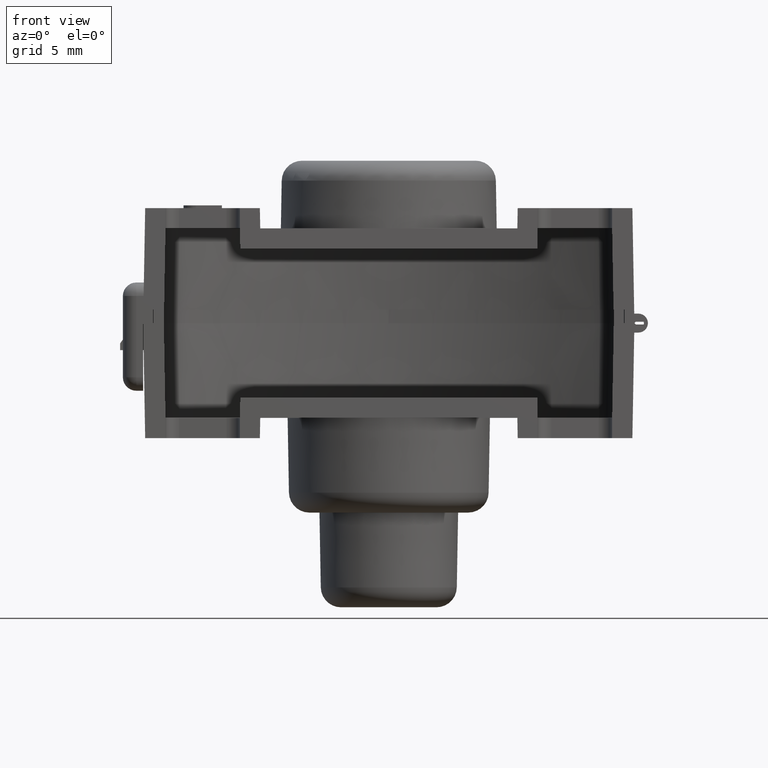
[diagram: clean part render]
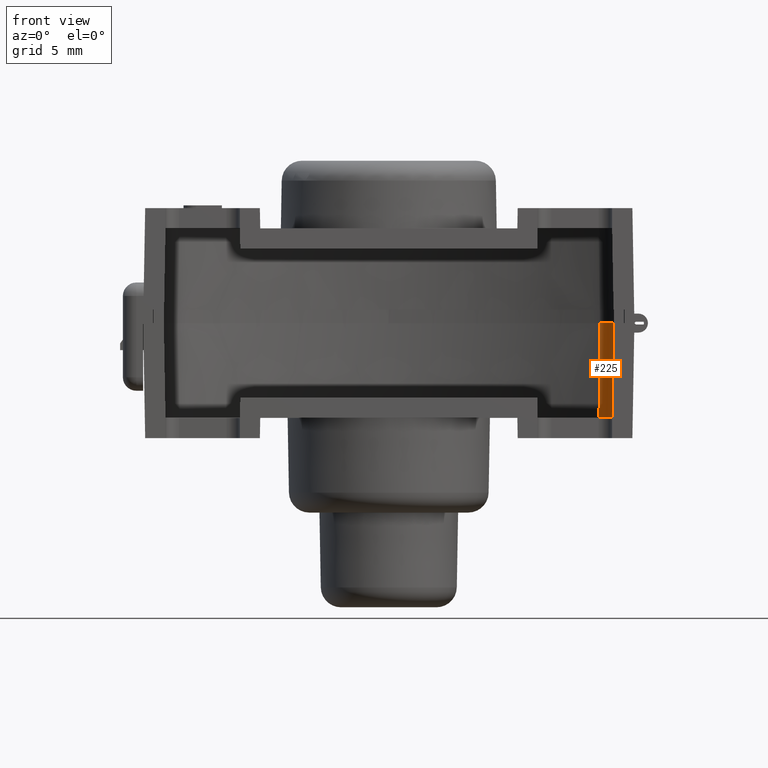
[diagram: same view with one face highlighted and labeled with its STEP entity id]
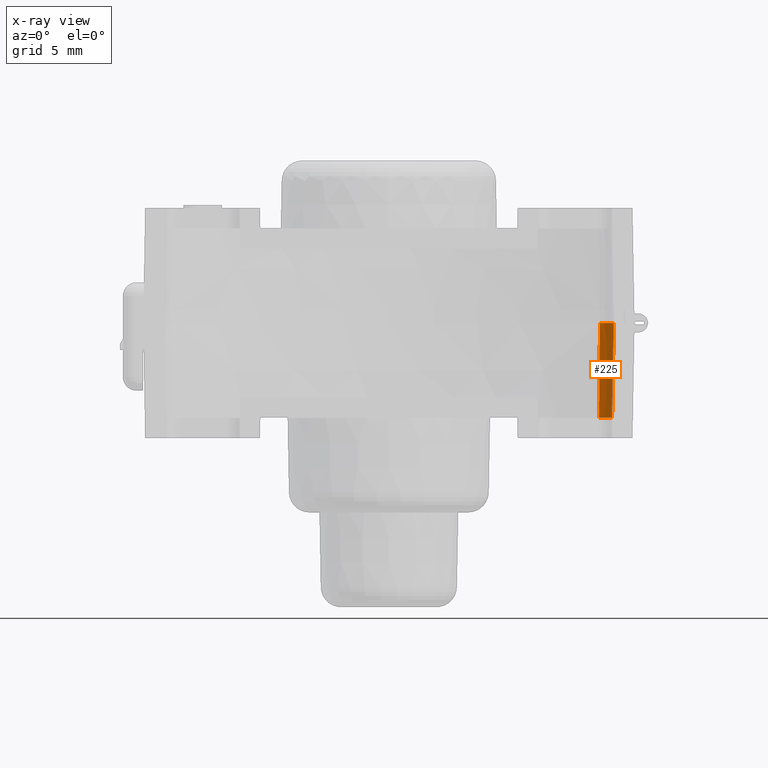
[diagram: x-ray of the same camera — body ghosted, the highlighted face saturated]
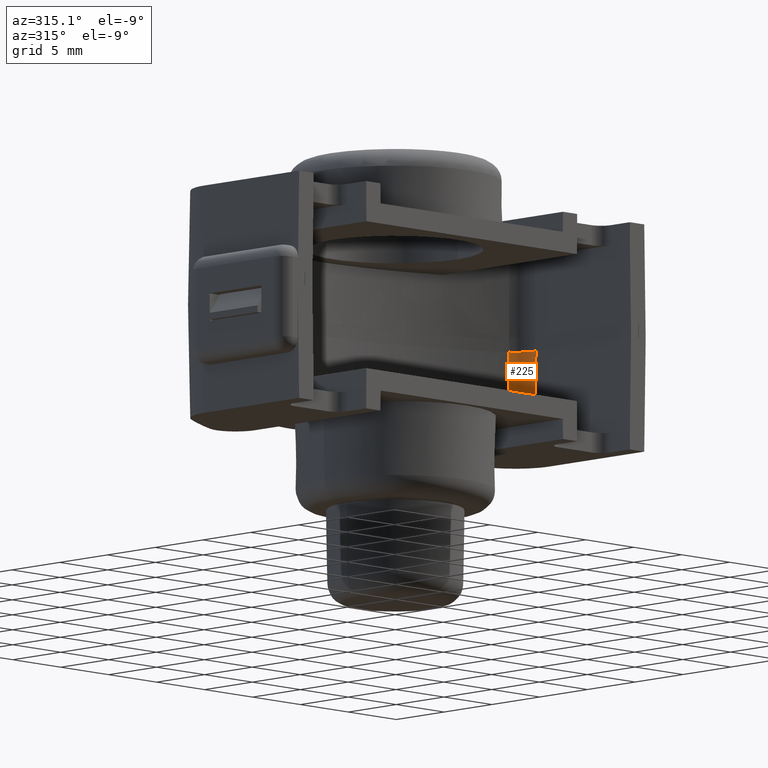
[diagram: same view with one face highlighted and labeled with its STEP entity id]
A machine part, front view. The second image highlights one B-rep face of the part: STEP entity #225.
The next image is the same camera in x-ray: the body ghosted, the highlighted face saturated — about 0% of this face is hidden behind the body in this view.
A second angle (auxiliary view) of the same face is appended — the face is thin or edge-on in the first view.
In plain terms, the highlighted conical surface has half-angle 1 deg.
Its self-contained STEP definition (entity closure, byte-faithful):
#225=ADVANCED_FACE('',(#562),#563,.F.);
#562=FACE_OUTER_BOUND('',#1034,.T.);
#563=CONICAL_SURFACE('',#1035,2.0,0.0174532925199416);
#1034=EDGE_LOOP('',(#2298,#2299,#2300,#2301));
#1035=AXIS2_PLACEMENT_3D('',#2302,#2303,#2304);
#2298=ORIENTED_EDGE('',*,*,#3143,.T.);
#2299=ORIENTED_EDGE('',*,*,#3144,.F.);
#2300=ORIENTED_EDGE('',*,*,#3145,.F.);
#2301=ORIENTED_EDGE('',*,*,#3146,.T.);
#2302=CARTESIAN_POINT('',(14.5,1.95307913400698,-19.0));
#2303=DIRECTION('',(0.0,1.22464679914735E-16,1.0));
#2304=DIRECTION('',(-1.0,0.0,0.0));
#3143=EDGE_CURVE('',#3883,#3884,#3885,.T.);
#3144=EDGE_CURVE('',#3886,#3884,#3887,.T.);
#3145=EDGE_CURVE('',#3888,#3886,#3889,.T.);
#3146=EDGE_CURVE('',#3888,#3883,#3890,.T.);
#3883=VERTEX_POINT('',#5125);
#3884=VERTEX_POINT('',#5126);
#3885=CIRCLE('',#5127,2.0);
#3886=VERTEX_POINT('',#5128);
#3887=LINE('',#5129,#5130);
#3888=VERTEX_POINT('',#5131);
#3889=CIRCLE('',#5132,2.12218545449752);
#3890=LINE('',#5133,#5134);
#5125=CARTESIAN_POINT('',(15.5357142857143,3.6640133578646,-19.0));
#5126=CARTESIAN_POINT('',(16.5,1.95307913400698,-19.0));
#5127=AXIS2_PLACEMENT_3D('',#6088,#6089,#6090);
#5128=CARTESIAN_POINT('',(16.6221854544976,1.95307913400698,-12.0));
#5129=CARTESIAN_POINT('',(16.5,1.95307913400698,-19.0));
#5130=VECTOR('',#6091,1000.0);
#5131=CARTESIAN_POINT('',(15.5989888960791,3.7685389957433,-12.0));
#5132=AXIS2_PLACEMENT_3D('',#6092,#6093,#6094);
#5133=CARTESIAN_POINT('',(15.5357142857143,3.6640133578646,-19.0));
#5134=VECTOR('',#6095,1000.0);
#6088=CARTESIAN_POINT('',(14.5,1.95307913400698,-19.0));
#6089=DIRECTION('',(0.0,-1.22464679914735E-16,-1.0));
#6090=DIRECTION('',(1.0,0.0,0.0));
#6091=DIRECTION('',(-0.0174524064372835,-1.22446027950813E-16,-0.999847695156391));
#6092=CARTESIAN_POINT('',(14.5,1.95307913400698,-12.0));
#6093=DIRECTION('',(0.0,-1.22464679914735E-16,-1.0));
#6094=DIRECTION('',(1.0,0.0,0.0));
#6095=DIRECTION('',(-0.00903785333359326,-0.014929959731111,-0.999847695156391));